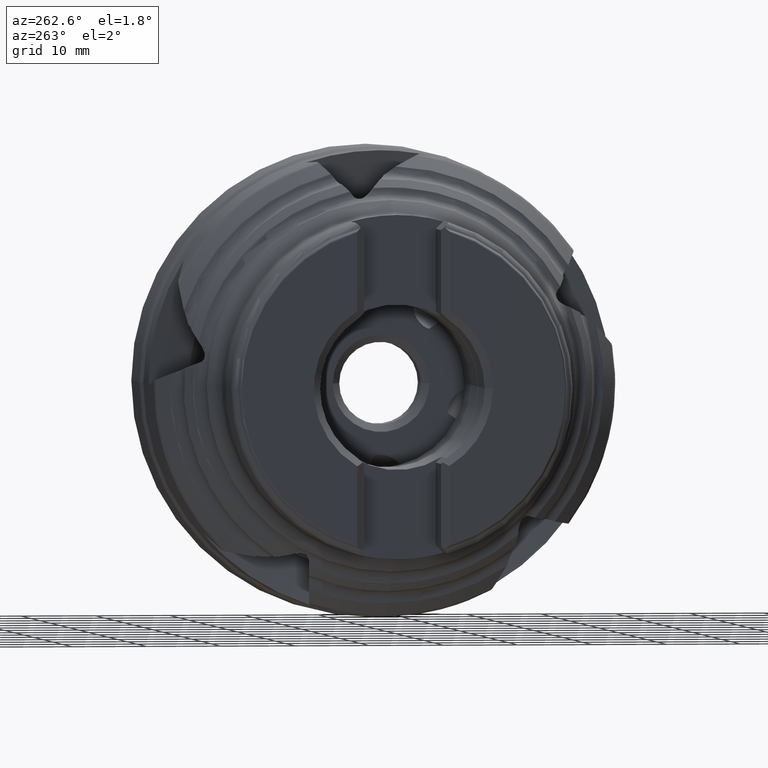
[diagram: clean part render]
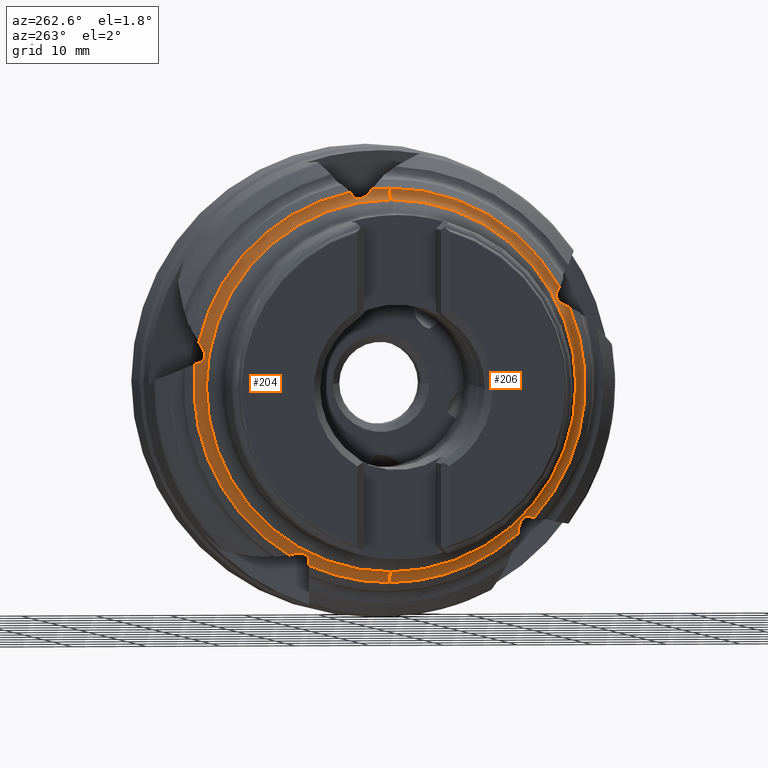
[diagram: same view with one multi-face feature highlighted, each face labeled with its STEP entity id]
A machine part, auxiliary view. The highlighted faces form ONE feature: a constant-radius fillet chain: 2 tangent blend faces with common blend radius 1.5 mm. The faces share edges in the B-rep.
Their STEP definitions:
[1] entity #204 (Torus):
#81 = CARTESIAN_POINT ( 'NONE',  ( -24.36246391146191200, 3.404540822889372500, 25.18942615892297400 ) ) ;
#97 = CARTESIAN_POINT ( 'NONE',  ( -24.20151143756573100, 25.46713319387383500, 3.193515619784487800 ) ) ;
#98 = CARTESIAN_POINT ( 'NONE',  ( -24.03428399164215500, 13.52738050983932900, -22.61425321434513300 ) ) ;
#99 = CARTESIAN_POINT ( 'NONE',  ( -24.03428399164215500, 26.18743267313756100, 2.934764367097817800 ) ) ;
#110 = CARTESIAN_POINT ( 'NONE',  ( -25.53427991958032100, 0.0000000000000000000, -24.85486081896872100 ) ) ;
#111 = CARTESIAN_POINT ( 'NONE',  ( -24.03428399164215500, 3.227111560295240500E-015, 26.35136565532267400 ) ) ;
#117 = CARTESIAN_POINT ( 'NONE',  ( -24.03428399164277000, 10.88348851016882600, -23.99883642490888000 ) ) ;
#118 = CARTESIAN_POINT ( 'NONE',  ( -24.03428399164215500, 0.0000000000000000000, -26.35136565532230400 ) ) ;
#119 = CARTESIAN_POINT ( 'NONE',  ( -24.20151143756573500, 4.832563114830891000, 25.20753357370557900 ) ) ;
#120 = CARTESIAN_POINT ( 'NONE',  ( -24.03428399164215500, 2.348443809163356400, 26.24650993133587200 ) ) ;
#121 = CARTESIAN_POINT ( 'NONE',  ( -25.53427991958032100, 3.043842574520300900E-015, 24.85486081896872100 ) ) ;
#122 = CARTESIAN_POINT ( 'NONE',  ( -24.03428399164215500, 5.301234959929995000, 25.81262055274736900 ) ) ;
#123 = CARTESIAN_POINT ( 'NONE',  ( -24.03428399164215500, 25.68762334756857200, 5.877114823955738900 ) ) ;
#124 = CARTESIAN_POINT ( 'NONE',  ( -24.36246391146191200, 25.00862886249538900, 4.546050027058189600 ) ) ;
#204 = ADVANCED_FACE ( 'NONE', ( #4391 ), #4250, .F. ) ;
#214 = EDGE_CURVE ( 'NONE', #10758, #10759, #4242, .T. ) ;
#215 = EDGE_CURVE ( 'NONE', #10753, #10760, #4260, .T. ) ;
#216 = EDGE_CURVE ( 'NONE', #10759, #10760, #4265, .T. ) ;
#217 = EDGE_CURVE ( 'NONE', #10754, #10758, #10549, .T. ) ;
#218 = EDGE_CURVE ( 'NONE', #10756, #10753, #4272, .T. ) ;
#219 = EDGE_CURVE ( 'NONE', #10757, #10754, #10548, .T. ) ;
#220 = EDGE_CURVE ( 'NONE', #10761, #10757, #10547, .T. ) ;
#221 = EDGE_CURVE ( 'NONE', #10762, #10761, #4274, .T. ) ;
#222 = EDGE_CURVE ( 'NONE', #10763, #10762, #10541, .T. ) ;
#223 = EDGE_CURVE ( 'NONE', #7693, #10763, #10542, .T. ) ;
#224 = EDGE_CURVE ( 'NONE', #10439, #7693, #10543, .T. ) ;
#225 = EDGE_CURVE ( 'NONE', #10436, #10439, #4279, .T. ) ;
#226 = EDGE_CURVE ( 'NONE', #270, #10436, #10544, .T. ) ;
#227 = EDGE_CURVE ( 'NONE', #271, #270, #10545, .T. ) ;
#228 = EDGE_CURVE ( 'NONE', #10755, #271, #10546, .T. ) ;
#229 = EDGE_CURVE ( 'NONE', #10756, #10755, #4277, .T. ) ;
#270 = VERTEX_POINT ( 'NONE', #4730 ) ;
#271 = VERTEX_POINT ( 'NONE', #4733 ) ;
#301 = EDGE_LOOP ( 'NONE', ( #507, #509, #510, #511, #512, #513, #514, #515, #516, #517, #518, #519, #520, #521, #522, #523 ) ) ;
#507 = ORIENTED_EDGE ( 'NONE', *, *, #218, .T. ) ;
#509 = ORIENTED_EDGE ( 'NONE', *, *, #215, .T. ) ;
#510 = ORIENTED_EDGE ( 'NONE', *, *, #216, .F. ) ;
#511 = ORIENTED_EDGE ( 'NONE', *, *, #214, .F. ) ;
#512 = ORIENTED_EDGE ( 'NONE', *, *, #217, .F. ) ;
#513 = ORIENTED_EDGE ( 'NONE', *, *, #219, .F. ) ;
#514 = ORIENTED_EDGE ( 'NONE', *, *, #220, .F. ) ;
#515 = ORIENTED_EDGE ( 'NONE', *, *, #221, .F. ) ;
#516 = ORIENTED_EDGE ( 'NONE', *, *, #222, .F. ) ;
#517 = ORIENTED_EDGE ( 'NONE', *, *, #223, .F. ) ;
#518 = ORIENTED_EDGE ( 'NONE', *, *, #224, .F. ) ;
#519 = ORIENTED_EDGE ( 'NONE', *, *, #225, .F. ) ;
#520 = ORIENTED_EDGE ( 'NONE', *, *, #226, .F. ) ;
#521 = ORIENTED_EDGE ( 'NONE', *, *, #227, .F. ) ;
#522 = ORIENTED_EDGE ( 'NONE', *, *, #228, .F. ) ;
#523 = ORIENTED_EDGE ( 'NONE', *, *, #229, .F. ) ;
#4242 = CIRCLE ( 'NONE', #4267, 26.35136565532230400 ) ;
#4250 = TOROIDAL_SURFACE ( 'NONE', #4253, 26.35486081896872100, 1.499999999999998200 ) ;
#4253 = AXIS2_PLACEMENT_3D ( 'NONE', #4396, #4393, #4398 ) ;
#4260 = CIRCLE ( 'NONE', #4273, 24.85486081896872100 ) ;
#4265 = CIRCLE ( 'NONE', #4275, 1.499999999999997800 ) ;
#4267 = AXIS2_PLACEMENT_3D ( 'NONE', #4435, #4436, #4437 ) ;
#4272 = CIRCLE ( 'NONE', #4276, 1.499999999999997800 ) ;
#4273 = AXIS2_PLACEMENT_3D ( 'NONE', #4438, #4439, #4440 ) ;
#4274 = CIRCLE ( 'NONE', #4278, 26.35136565532230400 ) ;
#4275 = AXIS2_PLACEMENT_3D ( 'NONE', #4443, #4444, #4445 ) ;
#4276 = AXIS2_PLACEMENT_3D ( 'NONE', #4455, #4456, #4457 ) ;
#4277 = CIRCLE ( 'NONE', #4282, 26.35136565532230400 ) ;
#4278 = AXIS2_PLACEMENT_3D ( 'NONE', #4474, #4475, #4476 ) ;
#4279 = CIRCLE ( 'NONE', #4280, 26.35136565532230400 ) ;
#4280 = AXIS2_PLACEMENT_3D ( 'NONE', #4499, #4500, #4501 ) ;
#4282 = AXIS2_PLACEMENT_3D ( 'NONE', #4522, #4523, #4524 ) ;
#4391 = FACE_OUTER_BOUND ( 'NONE', #301, .T. ) ;
#4393 = DIRECTION ( 'NONE',  ( 1.000000000000000000, -0.0000000000000000000, -0.0000000000000000000 ) ) ;
#4396 = CARTESIAN_POINT ( 'NONE',  ( -25.53427991958032100, 0.0000000000000000000, 0.0000000000000000000 ) ) ;
#4398 = DIRECTION ( 'NONE',  ( 0.0000000000000000000, 0.0000000000000000000, -1.000000000000000000 ) ) ;
#4434 = CARTESIAN_POINT ( 'NONE',  ( -24.26913403865445300, 3.210361896446969300, 25.33352619547151000 ) ) ;
#4435 = CARTESIAN_POINT ( 'NONE',  ( -24.03428399164215500, 0.0000000000000000000, 0.0000000000000000000 ) ) ;
#4436 = DIRECTION ( 'NONE',  ( 1.000000000000000000, -0.0000000000000000000, -0.0000000000000000000 ) ) ;
#4437 = DIRECTION ( 'NONE',  ( 0.0000000000000000000, 0.0000000000000000000, -1.000000000000000000 ) ) ;
#4438 = CARTESIAN_POINT ( 'NONE',  ( -25.53427991958032100, 0.0000000000000000000, 0.0000000000000000000 ) ) ;
#4439 = DIRECTION ( 'NONE',  ( 1.000000000000000000, -0.0000000000000000000, -0.0000000000000000000 ) ) ;
#4440 = DIRECTION ( 'NONE',  ( 0.0000000000000000000, 0.0000000000000000000, -1.000000000000000000 ) ) ;
#4441 = CARTESIAN_POINT ( 'NONE',  ( -24.18998163035901800, 3.024459614615156300, 25.49123893818470100 ) ) ;
#4442 = CARTESIAN_POINT ( 'NONE',  ( -24.03456386925013900, 5.223671121017986300, 25.70593000658013200 ) ) ;
#4443 = CARTESIAN_POINT ( 'NONE',  ( -25.53427991958032100, 3.227539594392403200E-015, 26.35486081896872100 ) ) ;
#4444 = DIRECTION ( 'NONE',  ( 0.0000000000000000000, 1.000000000000000000, -1.224646799147353200E-016 ) ) ;
#4445 = DIRECTION ( 'NONE',  ( 0.0000000000000000000, 1.224646799147352200E-016, 1.000000000000000000 ) ) ;
#4446 = CARTESIAN_POINT ( 'NONE',  ( -24.36246391146191200, 3.404540822889372500, 25.18942615892297400 ) ) ;
#4447 = CARTESIAN_POINT ( 'NONE',  ( -24.10241852268846700, 2.759388216539702100, 25.75314856153858400 ) ) ;
#4448 = CARTESIAN_POINT ( 'NONE',  ( -24.07849323805233200, 2.673338542908958400, 25.84471015867815100 ) ) ;
#4449 = CARTESIAN_POINT ( 'NONE',  ( -24.04453471512596600, 2.506323066864405200, 26.03802825091544500 ) ) ;
#4450 = CARTESIAN_POINT ( 'NONE',  ( -24.03451419232860400, 2.424889772335191700, 26.14048145194163900 ) ) ;
#4451 = CARTESIAN_POINT ( 'NONE',  ( -24.03428399164215500, 2.348443809163356400, 26.24650993133587200 ) ) ;
#4452 = CARTESIAN_POINT ( 'NONE',  ( -24.03428399164215500, 5.301234959929995000, 25.81262055274736900 ) ) ;
#4453 = CARTESIAN_POINT ( 'NONE',  ( -24.20151143756573500, 4.832563114830891000, 25.20753357370557900 ) ) ;
#4454 = CARTESIAN_POINT ( 'NONE',  ( -24.25782664738879600, 4.753168294182454000, 25.11172107695557900 ) ) ;
#4455 = CARTESIAN_POINT ( 'NONE',  ( -25.53427991958032100, 0.0000000000000000000, -26.35486081896872100 ) ) ;
#4456 = DIRECTION ( 'NONE',  ( -0.0000000000000000000, -1.000000000000000000, -0.0000000000000000000 ) ) ;
#4457 = DIRECTION ( 'NONE',  ( 0.0000000000000000000, 0.0000000000000000000, -1.000000000000000000 ) ) ;
#4458 = CARTESIAN_POINT ( 'NONE',  ( -24.31969538981302700, 4.650700006914908300, 25.04284358940228100 ) ) ;
#4459 = CARTESIAN_POINT ( 'NONE',  ( -24.42385033261781400, 4.414936794624082100, 24.95577754013654800 ) ) ;
#4460 = CARTESIAN_POINT ( 'NONE',  ( -24.46486928465072500, 4.281697115113038500, 24.93815409694873300 ) ) ;
#4461 = CARTESIAN_POINT ( 'NONE',  ( -24.50177338779274500, 4.014561608954356800, 24.94584583712681800 ) ) ;
#4462 = CARTESIAN_POINT ( 'NONE',  ( -24.49801906406272800, 3.877281808022446300, 24.97099053108258100 ) ) ;
#4463 = CARTESIAN_POINT ( 'NONE',  ( -24.45236578184780300, 3.623942607617126800, 25.05500493452791500 ) ) ;
#4464 = CARTESIAN_POINT ( 'NONE',  ( -24.41153359922853000, 3.506633529166164100, 25.11366323770717600 ) ) ;
#4465 = CARTESIAN_POINT ( 'NONE',  ( -24.36246391146191200, 3.404540822889372500, 25.18942615892297400 ) ) ;
#4466 = CARTESIAN_POINT ( 'NONE',  ( -24.26913403865445000, 25.08567155303306300, 4.775254520561985000 ) ) ;
#4467 = CARTESIAN_POINT ( 'NONE',  ( -24.04906286857912100, 5.145420424071356400, 25.60169390684045600 ) ) ;
#4468 = CARTESIAN_POINT ( 'NONE',  ( -24.10549582527095000, 4.987593778047563700, 25.39795741720722700 ) ) ;
#4469 = CARTESIAN_POINT ( 'NONE',  ( -24.14751451123422000, 4.908689551989323400, 25.29940183353988900 ) ) ;
#4470 = CARTESIAN_POINT ( 'NONE',  ( -24.20151143756573500, 4.832563114830891000, 25.20753357370557900 ) ) ;
#4471 = CARTESIAN_POINT ( 'NONE',  ( -24.03484159804239800, 25.93752117561865200, 3.016047934338499400 ) ) ;
#4472 = CARTESIAN_POINT ( 'NONE',  ( -24.18998163035902100, 25.17821832031411600, 5.000794014820130000 ) ) ;
#4473 = CARTESIAN_POINT ( 'NONE',  ( -24.25782664738878600, 25.35147574565151600, 3.239416891553023700 ) ) ;
#4474 = CARTESIAN_POINT ( 'NONE',  ( -24.03428399164215500, 0.0000000000000000000, 0.0000000000000000000 ) ) ;
#4475 = DIRECTION ( 'NONE',  ( 1.000000000000000000, -0.0000000000000000000, -0.0000000000000000000 ) ) ;
#4476 = DIRECTION ( 'NONE',  ( 0.0000000000000000000, 0.0000000000000000000, -1.000000000000000000 ) ) ;
#4477 = CARTESIAN_POINT ( 'NONE',  ( -24.36246391146191200, 25.00862886249538900, 4.546050027058189600 ) ) ;
#4478 = CARTESIAN_POINT ( 'NONE',  ( -24.10241852268846300, 25.34539760755718500, 5.333826419849951400 ) ) ;
#4479 = CARTESIAN_POINT ( 'NONE',  ( -24.07849323805232100, 25.40588704964684700, 5.443958612229784500 ) ) ;
#4480 = CARTESIAN_POINT ( 'NONE',  ( -24.04453471512597000, 25.53813286056549400, 5.662538344865562400 ) ) ;
#4481 = CARTESIAN_POINT ( 'NONE',  ( -24.03451419232860400, 25.61040737309928500, 5.771645790516155100 ) ) ;
#4482 = CARTESIAN_POINT ( 'NONE',  ( -24.03428399164215500, 25.68762334756857200, 5.877114823955738900 ) ) ;
#4483 = CARTESIAN_POINT ( 'NONE',  ( -24.20151143756573100, 25.46713319387383500, 3.193515619784487800 ) ) ;
#4484 = CARTESIAN_POINT ( 'NONE',  ( -24.31969538981302400, 25.25430492013776600, 3.315585709688610100 ) ) ;
#4485 = CARTESIAN_POINT ( 'NONE',  ( -24.42385033261781800, 25.09864534738921900, 3.512904960184278600 ) ) ;
#4486 = CARTESIAN_POINT ( 'NONE',  ( -24.46486928465073200, 25.04071113161190400, 3.634177482167902300 ) ) ;
#4487 = CARTESIAN_POINT ( 'NONE',  ( -24.50177338779274900, 24.96547700002592800, 3.890615324465263900 ) ) ;
#4488 = CARTESIAN_POINT ( 'NONE',  ( -24.49801906406272800, 24.94696923359044000, 4.028946311447947800 ) ) ;
#4489 = CARTESIAN_POINT ( 'NONE',  ( -24.45236578184781400, 24.94858556118316900, 4.295848087263311600 ) ) ;
#4490 = CARTESIAN_POINT ( 'NONE',  ( -24.41153359922852300, 24.96812242382080900, 4.425542063288268000 ) ) ;
#4491 = CARTESIAN_POINT ( 'NONE',  ( -24.36246391146191200, 25.00862886249538900, 4.546050027058189600 ) ) ;
#4492 = CARTESIAN_POINT ( 'NONE',  ( -24.03428399164215500, 26.18743267313756100, 2.934764367097817800 ) ) ;
#4493 = CARTESIAN_POINT ( 'NONE',  ( -24.26913403865446000, 12.29343575394397100, -22.38225659683247300 ) ) ;
#4494 = CARTESIAN_POINT ( 'NONE',  ( -24.09337390064064600, 25.68922082556514000, 3.105375124767667700 ) ) ;
#4495 = CARTESIAN_POINT ( 'NONE',  ( -24.20151143756573100, 25.46713319387383500, 3.193515619784487800 ) ) ;
#4496 = CARTESIAN_POINT ( 'NONE',  ( -24.03484165280234200, 10.88356688433367300, -23.73601265489806900 ) ) ;
#4497 = CARTESIAN_POINT ( 'NONE',  ( -24.18998163035904300, 12.53653508350435600, -22.40057826628865500 ) ) ;
#4498 = CARTESIAN_POINT ( 'NONE',  ( -24.25782664738877900, 10.91490538159897200, -23.10965133424513200 ) ) ;
#4499 = CARTESIAN_POINT ( 'NONE',  ( -24.03428399164215500, 0.0000000000000000000, 0.0000000000000000000 ) ) ;
#4500 = DIRECTION ( 'NONE',  ( 1.000000000000000000, -0.0000000000000000000, -0.0000000000000000000 ) ) ;
#4501 = DIRECTION ( 'NONE',  ( 0.0000000000000000000, 0.0000000000000000000, -1.000000000000000000 ) ) ;
#4502 = CARTESIAN_POINT ( 'NONE',  ( -24.36246391146191200, 12.05164182616458700, -22.37981272764348600 ) ) ;
#4503 = CARTESIAN_POINT ( 'NONE',  ( -24.10241852268849500, 12.90492896331095500, -22.45666254397897200 ) ) ;
#4504 = CARTESIAN_POINT ( 'NONE',  ( -24.07849323805235300, 13.02836316811361600, -22.48015870297225400 ) ) ;
#4505 = CARTESIAN_POINT ( 'NONE',  ( -24.04453471512599100, 13.27711105017564600, -22.53838709118874900 ) ) ;
#4506 = CARTESIAN_POINT ( 'NONE',  ( -24.03451419232861900, 13.40321244997104700, -22.57340818237719300 ) ) ;
#4507 = CARTESIAN_POINT ( 'NONE',  ( -24.03428399164215500, 13.52738050983932900, -22.61425321434513300 ) ) ;
#4508 = CARTESIAN_POINT ( 'NONE',  ( -24.20151143756572100, 10.90699079500400300, -23.23383237707493600 ) ) ;
#4509 = CARTESIAN_POINT ( 'NONE',  ( -24.31969538981302700, 10.95731879598412200, -22.99369892820114800 ) ) ;
#4510 = CARTESIAN_POINT ( 'NONE',  ( -24.42385033261781400, 11.09687910164205800, -22.78468287549443600 ) ) ;
#4511 = CARTESIAN_POINT ( 'NONE',  ( -24.46486928465073200, 11.19431346669115300, -22.69210889181932000 ) ) ;
#4512 = CARTESIAN_POINT ( 'NONE',  ( -24.50177338779275600, 11.41495172241561700, -22.54131332945594200 ) ) ;
#4513 = CARTESIAN_POINT ( 'NONE',  ( -24.49801906406272400, 11.54079309463455200, -22.48096477175909100 ) ) ;
#4514 = CARTESIAN_POINT ( 'NONE',  ( -24.45236578184781000, 11.79513124042913000, -22.40002480609281200 ) ) ;
#4515 = CARTESIAN_POINT ( 'NONE',  ( -24.41153359922852700, 11.92451476402369300, -22.37852782395254500 ) ) ;
#4516 = CARTESIAN_POINT ( 'NONE',  ( -24.36246391146191200, 12.05164182616458700, -22.37981272764348600 ) ) ;
#4517 = CARTESIAN_POINT ( 'NONE',  ( -24.03428399164277000, 10.88348851016882600, -23.99883642490888000 ) ) ;
#4519 = CARTESIAN_POINT ( 'NONE',  ( -24.09326068584141800, 10.89177714399949300, -23.47253682794116600 ) ) ;
#4520 = CARTESIAN_POINT ( 'NONE',  ( -24.20151143756572100, 10.90699079500400300, -23.23383237707493600 ) ) ;
#4522 = CARTESIAN_POINT ( 'NONE',  ( -24.03428399164215500, 0.0000000000000000000, 0.0000000000000000000 ) ) ;
#4523 = DIRECTION ( 'NONE',  ( 1.000000000000000000, -0.0000000000000000000, -0.0000000000000000000 ) ) ;
#4524 = DIRECTION ( 'NONE',  ( 0.0000000000000000000, 0.0000000000000000000, -1.000000000000000000 ) ) ;
#4730 = CARTESIAN_POINT ( 'NONE',  ( -24.36246391146191200, 12.05164182616458700, -22.37981272764348600 ) ) ;
#4733 = CARTESIAN_POINT ( 'NONE',  ( -24.20151143756572100, 10.90699079500400300, -23.23383237707493600 ) ) ;
#7693 = VERTEX_POINT ( 'NONE', #97 ) ;
#10436 = VERTEX_POINT ( 'NONE', #98 ) ;
#10439 = VERTEX_POINT ( 'NONE', #99 ) ;
#10541 = B_SPLINE_CURVE_WITH_KNOTS ( 'NONE', 3,
 ( #4477, #4466, #4472, #4478, #4479, #4480, #4481, #4482 ),
 .UNSPECIFIED., .F., .F.,
 ( 4, 2, 2, 4 ),
 ( 1.734723475976807100E-018, 0.0007654783298573748000, 0.001148217494786058900, 0.001530956659714743100 ),
 .UNSPECIFIED. ) ;
#10542 = B_SPLINE_CURVE_WITH_KNOTS ( 'NONE', 3,
 ( #4483, #4473, #4484, #4485, #4486, #4487, #4488, #4489, #4490, #4491 ),
 .UNSPECIFIED., .F., .F.,
 ( 4, 2, 2, 2, 4 ),
 ( 3.705370968959021200E-018, 0.0004081521234690037400, 0.0008163042469380038000, 0.001224456370407004000, 0.001632608493876003900 ),
 .UNSPECIFIED. ) ;
#10543 = B_SPLINE_CURVE_WITH_KNOTS ( 'NONE', 3,
 ( #4492, #4471, #4494, #4495 ),
 .UNSPECIFIED., .F., .F.,
 ( 4, 4 ),
 ( 0.0001711106367444782800, 0.0009573460914218071700 ),
 .UNSPECIFIED. ) ;
#10544 = B_SPLINE_CURVE_WITH_KNOTS ( 'NONE', 3,
 ( #4502, #4493, #4497, #4503, #4504, #4505, #4506, #4507 ),
 .UNSPECIFIED., .F., .F.,
 ( 4, 2, 2, 4 ),
 ( 1.734723475976807100E-018, 0.0007654783298572487100, 0.001148217494785870900, 0.001530956659714493300 ),
 .UNSPECIFIED. ) ;
#10545 = B_SPLINE_CURVE_WITH_KNOTS ( 'NONE', 3,
 ( #4508, #4498, #4509, #4510, #4511, #4512, #4513, #4514, #4515, #4516 ),
 .UNSPECIFIED., .F., .F.,
 ( 4, 2, 2, 2, 4 ),
 ( 0.0000000000000000000, 0.0004081521234689999500, 0.0008163042469379999000, 0.001224456370406999800, 0.001632608493875999800 ),
 .UNSPECIFIED. ) ;
#10546 = B_SPLINE_CURVE_WITH_KNOTS ( 'NONE', 3,
 ( #4517, #4496, #4519, #4520 ),
 .UNSPECIFIED., .F., .F.,
 ( 4, 4 ),
 ( 0.002556888241247099800, 0.003344447754128656200 ),
 .UNSPECIFIED. ) ;
#10547 = B_SPLINE_CURVE_WITH_KNOTS ( 'NONE', 3,
 ( #4452, #4442, #4467, #4468, #4469, #4470 ),
 .UNSPECIFIED., .F., .F.,
 ( 4, 2, 4 ),
 ( 0.0006660485213140805800, 0.001058877316812027100, 0.001451706112309973500 ),
 .UNSPECIFIED. ) ;
#10548 = B_SPLINE_CURVE_WITH_KNOTS ( 'NONE', 3,
 ( #4453, #4454, #4458, #4459, #4460, #4461, #4462, #4463, #4464, #4465 ),
 .UNSPECIFIED., .F., .F.,
 ( 4, 2, 2, 2, 4 ),
 ( 8.673617379884035500E-019, 0.0004081521234690002700, 0.0008163042469379996800, 0.001224456370406999000, 0.001632608493875998500 ),
 .UNSPECIFIED. ) ;
#10549 = B_SPLINE_CURVE_WITH_KNOTS ( 'NONE', 3,
 ( #4446, #4434, #4441, #4447, #4448, #4449, #4450, #4451 ),
 .UNSPECIFIED., .F., .F.,
 ( 4, 2, 2, 4 ),
 ( 3.878959614448864200E-018, 0.0007654783298573716600, 0.001148217494786052000, 0.001530956659714732300 ),
 .UNSPECIFIED. ) ;
#10753 = VERTEX_POINT ( 'NONE', #110 ) ;
#10754 = VERTEX_POINT ( 'NONE', #81 ) ;
#10755 = VERTEX_POINT ( 'NONE', #117 ) ;
#10756 = VERTEX_POINT ( 'NONE', #118 ) ;
#10757 = VERTEX_POINT ( 'NONE', #119 ) ;
#10758 = VERTEX_POINT ( 'NONE', #120 ) ;
#10759 = VERTEX_POINT ( 'NONE', #111 ) ;
#10760 = VERTEX_POINT ( 'NONE', #121 ) ;
#10761 = VERTEX_POINT ( 'NONE', #122 ) ;
#10762 = VERTEX_POINT ( 'NONE', #123 ) ;
#10763 = VERTEX_POINT ( 'NONE', #124 ) ;
[2] entity #206 (Torus):
#110 = CARTESIAN_POINT ( 'NONE',  ( -25.53427991958032100, 0.0000000000000000000, -24.85486081896872100 ) ) ;
#111 = CARTESIAN_POINT ( 'NONE',  ( -24.03428399164215500, 3.227111560295240500E-015, 26.35136565532267400 ) ) ;
#118 = CARTESIAN_POINT ( 'NONE',  ( -24.03428399164215500, 0.0000000000000000000, -26.35136565532230400 ) ) ;
#121 = CARTESIAN_POINT ( 'NONE',  ( -25.53427991958032100, 3.043842574520300900E-015, 24.85486081896872100 ) ) ;
#206 = ADVANCED_FACE ( 'NONE', ( #4399 ), #4254, .F. ) ;
#216 = EDGE_CURVE ( 'NONE', #10759, #10760, #4265, .T. ) ;
#218 = EDGE_CURVE ( 'NONE', #10756, #10753, #4272, .T. ) ;
#256 = EDGE_CURVE ( 'NONE', #10760, #10753, #4306, .T. ) ;
#257 = EDGE_CURVE ( 'NONE', #485, #10756, #4308, .T. ) ;
#258 = EDGE_CURVE ( 'NONE', #706, #485, #10529, .T. ) ;
#259 = EDGE_CURVE ( 'NONE', #707, #706, #10528, .T. ) ;
#260 = EDGE_CURVE ( 'NONE', #703, #707, #10527, .T. ) ;
#261 = EDGE_CURVE ( 'NONE', #486, #703, #4310, .T. ) ;
#262 = EDGE_CURVE ( 'NONE', #708, #486, #10526, .T. ) ;
#263 = EDGE_CURVE ( 'NONE', #709, #708, #10525, .T. ) ;
#264 = EDGE_CURVE ( 'NONE', #710, #709, #10524, .T. ) ;
#265 = EDGE_CURVE ( 'NONE', #10759, #710, #4307, .T. ) ;
#306 = EDGE_LOOP ( 'NONE', ( #552, #553, #554, #555, #556, #557, #558, #559, #560, #561, #562, #563 ) ) ;
#485 = VERTEX_POINT ( 'NONE', #4773 ) ;
#486 = VERTEX_POINT ( 'NONE', #4774 ) ;
#552 = ORIENTED_EDGE ( 'NONE', *, *, #216, .T. ) ;
#553 = ORIENTED_EDGE ( 'NONE', *, *, #256, .T. ) ;
#554 = ORIENTED_EDGE ( 'NONE', *, *, #218, .F. ) ;
#555 = ORIENTED_EDGE ( 'NONE', *, *, #257, .F. ) ;
#556 = ORIENTED_EDGE ( 'NONE', *, *, #258, .F. ) ;
#557 = ORIENTED_EDGE ( 'NONE', *, *, #259, .F. ) ;
#558 = ORIENTED_EDGE ( 'NONE', *, *, #260, .F. ) ;
#559 = ORIENTED_EDGE ( 'NONE', *, *, #261, .F. ) ;
#560 = ORIENTED_EDGE ( 'NONE', *, *, #262, .F. ) ;
#561 = ORIENTED_EDGE ( 'NONE', *, *, #263, .F. ) ;
#562 = ORIENTED_EDGE ( 'NONE', *, *, #264, .F. ) ;
#563 = ORIENTED_EDGE ( 'NONE', *, *, #265, .F. ) ;
#703 = VERTEX_POINT ( 'NONE', #4799 ) ;
#706 = VERTEX_POINT ( 'NONE', #4802 ) ;
#707 = VERTEX_POINT ( 'NONE', #4803 ) ;
#708 = VERTEX_POINT ( 'NONE', #4804 ) ;
#709 = VERTEX_POINT ( 'NONE', #4805 ) ;
#710 = VERTEX_POINT ( 'NONE', #4806 ) ;
#4254 = TOROIDAL_SURFACE ( 'NONE', #4257, 26.35486081896872100, 1.499999999999998200 ) ;
#4257 = AXIS2_PLACEMENT_3D ( 'NONE', #4404, #4401, #4406 ) ;
#4265 = CIRCLE ( 'NONE', #4275, 1.499999999999997800 ) ;
#4272 = CIRCLE ( 'NONE', #4276, 1.499999999999997800 ) ;
#4275 = AXIS2_PLACEMENT_3D ( 'NONE', #4443, #4444, #4445 ) ;
#4276 = AXIS2_PLACEMENT_3D ( 'NONE', #4455, #4456, #4457 ) ;
#4306 = CIRCLE ( 'NONE', #4309, 24.85486081896872100 ) ;
#4307 = CIRCLE ( 'NONE', #4314, 26.35136565532230400 ) ;
#4308 = CIRCLE ( 'NONE', #4311, 26.35136565532230400 ) ;
#4309 = AXIS2_PLACEMENT_3D ( 'NONE', #4663, #4664, #4665 ) ;
#4310 = CIRCLE ( 'NONE', #4312, 26.35136565532230400 ) ;
#4311 = AXIS2_PLACEMENT_3D ( 'NONE', #4668, #4669, #4670 ) ;
#4312 = AXIS2_PLACEMENT_3D ( 'NONE', #4693, #4694, #4695 ) ;
#4314 = AXIS2_PLACEMENT_3D ( 'NONE', #4716, #4717, #4718 ) ;
#4399 = FACE_OUTER_BOUND ( 'NONE', #306, .T. ) ;
#4401 = DIRECTION ( 'NONE',  ( 1.000000000000000000, -0.0000000000000000000, -0.0000000000000000000 ) ) ;
#4404 = CARTESIAN_POINT ( 'NONE',  ( -25.53427991958032100, 0.0000000000000000000, 0.0000000000000000000 ) ) ;
#4406 = DIRECTION ( 'NONE',  ( 0.0000000000000000000, 0.0000000000000000000, -1.000000000000000000 ) ) ;
#4443 = CARTESIAN_POINT ( 'NONE',  ( -25.53427991958032100, 3.227539594392403200E-015, 26.35486081896872100 ) ) ;
#4444 = DIRECTION ( 'NONE',  ( 0.0000000000000000000, 1.000000000000000000, -1.224646799147353200E-016 ) ) ;
#4445 = DIRECTION ( 'NONE',  ( 0.0000000000000000000, 1.224646799147352200E-016, 1.000000000000000000 ) ) ;
#4455 = CARTESIAN_POINT ( 'NONE',  ( -25.53427991958032100, 0.0000000000000000000, -26.35486081896872100 ) ) ;
#4456 = DIRECTION ( 'NONE',  ( -0.0000000000000000000, -1.000000000000000000, -0.0000000000000000000 ) ) ;
#4457 = DIRECTION ( 'NONE',  ( 0.0000000000000000000, 0.0000000000000000000, -1.000000000000000000 ) ) ;
#4658 = CARTESIAN_POINT ( 'NONE',  ( -24.26913403865443500, -17.48791041858247300, -18.60824984232624100 ) ) ;
#4662 = CARTESIAN_POINT ( 'NONE',  ( -24.25782664738876800, -18.60569323583423100, -17.52196688427611800 ) ) ;
#4663 = CARTESIAN_POINT ( 'NONE',  ( -25.53427991958032100, 0.0000000000000000000, 0.0000000000000000000 ) ) ;
#4664 = DIRECTION ( 'NONE',  ( 1.000000000000000000, -0.0000000000000000000, -0.0000000000000000000 ) ) ;
#4665 = DIRECTION ( 'NONE',  ( 0.0000000000000000000, 0.0000000000000000000, -1.000000000000000000 ) ) ;
#4666 = CARTESIAN_POINT ( 'NONE',  ( -24.18998163035901100, -17.43021353755286300, -18.84511275103894700 ) ) ;
#4667 = CARTESIAN_POINT ( 'NONE',  ( -24.20151143756571700, -18.72624216757913400, -17.55281371773480000 ) ) ;
#4668 = CARTESIAN_POINT ( 'NONE',  ( -24.03428399164215500, 0.0000000000000000000, 0.0000000000000000000 ) ) ;
#4669 = DIRECTION ( 'NONE',  ( 1.000000000000000000, -0.0000000000000000000, -0.0000000000000000000 ) ) ;
#4670 = DIRECTION ( 'NONE',  ( 0.0000000000000000000, 0.0000000000000000000, -1.000000000000000000 ) ) ;
#4671 = CARTESIAN_POINT ( 'NONE',  ( -24.36246391146190100, -17.56030459368582100, -18.37753495459959300 ) ) ;
#4672 = CARTESIAN_POINT ( 'NONE',  ( -24.10241852268845600, -17.36971288582798300, -19.21280714591587800 ) ) ;
#4673 = CARTESIAN_POINT ( 'NONE',  ( -24.07849323805232100, -17.35391579397527200, -19.33746076315864600 ) ) ;
#4674 = CARTESIAN_POINT ( 'NONE',  ( -24.04453471512597000, -17.33242695915001300, -19.59202761882236000 ) ) ;
#4675 = CARTESIAN_POINT ( 'NONE',  ( -24.03451419232860800, -17.32676652058130200, -19.72277928915052700 ) ) ;
#4676 = CARTESIAN_POINT ( 'NONE',  ( -24.03428399164215500, -17.32724241373483000, -19.85349194061787500 ) ) ;
#4677 = CARTESIAN_POINT ( 'NONE',  ( -24.03428399164215500, -19.46106685768434700, -17.76686096814065500 ) ) ;
#4678 = CARTESIAN_POINT ( 'NONE',  ( -24.25782664738879600, -22.41385618559844100, 12.28048025001250400 ) ) ;
#4679 = CARTESIAN_POINT ( 'NONE',  ( -24.03484165280236300, -19.21108237962949500, -17.68571849494192000 ) ) ;
#4680 = CARTESIAN_POINT ( 'NONE',  ( -24.31969538981301000, -18.48230947865151200, -17.52647317439918600 ) ) ;
#4681 = CARTESIAN_POINT ( 'NONE',  ( -24.42385033261781000, -18.24039689352603200, -17.59461340012776300 ) ) ;
#4682 = CARTESIAN_POINT ( 'NONE',  ( -24.46486928465071400, -18.12224492847611000, -17.65867205372618900 ) ) ;
#4683 = CARTESIAN_POINT ( 'NONE',  ( -24.50177338779275600, -17.91064885563392300, -17.82191311313033600 ) ) ;
#4684 = CARTESIAN_POINT ( 'NONE',  ( -24.49801906406272400, -17.81436684397621000, -17.92294664028432300 ) ) ;
#4685 = CARTESIAN_POINT ( 'NONE',  ( -24.45236578184781400, -17.65879355283226100, -18.13982476626968300 ) ) ;
#4686 = CARTESIAN_POINT ( 'NONE',  ( -24.41153359922852300, -17.59836700030423300, -18.25623287667640700 ) ) ;
#4687 = CARTESIAN_POINT ( 'NONE',  ( -24.36246391146190100, -17.56030459368582100, -18.37753495459959300 ) ) ;
#4688 = CARTESIAN_POINT ( 'NONE',  ( -24.09326068584143600, -18.95796486775095600, -17.61210840776091000 ) ) ;
#4689 = CARTESIAN_POINT ( 'NONE',  ( -24.20151143756571700, -18.72624216757913400, -17.55281371773480000 ) ) ;
#4690 = CARTESIAN_POINT ( 'NONE',  ( -24.18998163035901400, -23.30899948088056200, 10.75365806432265400 ) ) ;
#4691 = CARTESIAN_POINT ( 'NONE',  ( -24.26913403865444600, -23.10155878484128800, 10.88172572312508100 ) ) ;
#4692 = CARTESIAN_POINT ( 'NONE',  ( -24.20151143756573500, -22.48044493612931700, 12.38559690131953100 ) ) ;
#4693 = CARTESIAN_POINT ( 'NONE',  ( -24.03428399164215500, 0.0000000000000000000, 0.0000000000000000000 ) ) ;
#4694 = DIRECTION ( 'NONE',  ( 1.000000000000000000, -0.0000000000000000000, -0.0000000000000000000 ) ) ;
#4695 = DIRECTION ( 'NONE',  ( 0.0000000000000000000, 0.0000000000000000000, -1.000000000000000000 ) ) ;
#4696 = CARTESIAN_POINT ( 'NONE',  ( -24.36246391146190900, -22.90450691786323700, 11.02187149626177900 ) ) ;
#4697 = CARTESIAN_POINT ( 'NONE',  ( -24.10241852268847000, -23.64000190157973300, 10.58249470850621600 ) ) ;
#4698 = CARTESIAN_POINT ( 'NONE',  ( -24.07849323805233200, -23.75367296669403000, 10.52895069522286200 ) ) ;
#4699 = CARTESIAN_POINT ( 'NONE',  ( -24.04453471512597300, -23.98914001845544800, 10.42984811423002100 ) ) ;
#4700 = CARTESIAN_POINT ( 'NONE',  ( -24.03451419232860800, -24.11174307482416200, 10.38406022906984700 ) ) ;
#4701 = CARTESIAN_POINT ( 'NONE',  ( -24.03428399164215500, -24.23620525283636700, 10.34412039967135800 ) ) ;
#4702 = CARTESIAN_POINT ( 'NONE',  ( -24.03428399164215500, -22.91108928555167200, 13.01831247320400700 ) ) ;
#4703 = CARTESIAN_POINT ( 'NONE',  ( -24.03484165280236300, -22.75666875561880800, 12.80563750956132400 ) ) ;
#4704 = CARTESIAN_POINT ( 'NONE',  ( -24.31969538981302700, -22.38001424438499900, 12.16174280350928200 ) ) ;
#4705 = CARTESIAN_POINT ( 'NONE',  ( -24.42385033261781800, -22.37006435012904100, 11.91061377530122200 ) ) ;
#4706 = CARTESIAN_POINT ( 'NONE',  ( -24.46486928465073200, -22.39447678493969800, 11.77844936642872200 ) ) ;
#4707 = CARTESIAN_POINT ( 'NONE',  ( -24.50177338779275600, -22.48434147576169900, 11.52676528099404900 ) ) ;
#4708 = CARTESIAN_POINT ( 'NONE',  ( -24.49801906406272400, -22.55067729227094000, 11.40397456951274400 ) ) ;
#4709 = CARTESIAN_POINT ( 'NONE',  ( -24.45236578184780300, -22.70886585639688300, 11.18899655057113700 ) ) ;
#4710 = CARTESIAN_POINT ( 'NONE',  ( -24.41153359922853000, -22.80090371670614500, 11.09555539963336200 ) ) ;
#4711 = CARTESIAN_POINT ( 'NONE',  ( -24.36246391146190900, -22.90450691786323700, 11.02187149626177900 ) ) ;
#4713 = CARTESIAN_POINT ( 'NONE',  ( -24.09326068584144000, -22.60844378979588900, 12.58765521839717700 ) ) ;
#4714 = CARTESIAN_POINT ( 'NONE',  ( -24.20151143756573500, -22.48044493612931700, 12.38559690131953100 ) ) ;
#4716 = CARTESIAN_POINT ( 'NONE',  ( -24.03428399164215500, 0.0000000000000000000, 0.0000000000000000000 ) ) ;
#4717 = DIRECTION ( 'NONE',  ( 1.000000000000000000, -0.0000000000000000000, -0.0000000000000000000 ) ) ;
#4718 = DIRECTION ( 'NONE',  ( 0.0000000000000000000, 0.0000000000000000000, -1.000000000000000000 ) ) ;
#4773 = CARTESIAN_POINT ( 'NONE',  ( -24.03428399164215500, -17.32724241373483000, -19.85349194061787500 ) ) ;
#4774 = CARTESIAN_POINT ( 'NONE',  ( -24.03428399164215500, -24.23620525283636700, 10.34412039967135800 ) ) ;
#4799 = CARTESIAN_POINT ( 'NONE',  ( -24.03428399164215500, -19.46106685768434700, -17.76686096814065500 ) ) ;
#4802 = CARTESIAN_POINT ( 'NONE',  ( -24.36246391146190100, -17.56030459368582100, -18.37753495459959300 ) ) ;
#4803 = CARTESIAN_POINT ( 'NONE',  ( -24.20151143756571700, -18.72624216757913400, -17.55281371773480000 ) ) ;
#4804 = CARTESIAN_POINT ( 'NONE',  ( -24.36246391146190900, -22.90450691786323700, 11.02187149626177900 ) ) ;
#4805 = CARTESIAN_POINT ( 'NONE',  ( -24.20151143756573500, -22.48044493612931700, 12.38559690131953100 ) ) ;
#4806 = CARTESIAN_POINT ( 'NONE',  ( -24.03428399164215500, -22.91108928555167200, 13.01831247320400700 ) ) ;
#10524 = B_SPLINE_CURVE_WITH_KNOTS ( 'NONE', 3,
 ( #4702, #4703, #4713, #4714 ),
 .UNSPECIFIED., .F., .F.,
 ( 4, 4 ),
 ( 0.002556888241246947500, 0.003344447754128351700 ),
 .UNSPECIFIED. ) ;
#10525 = B_SPLINE_CURVE_WITH_KNOTS ( 'NONE', 3,
 ( #4692, #4678, #4704, #4705, #4706, #4707, #4708, #4709, #4710, #4711 ),
 .UNSPECIFIED., .F., .F.,
 ( 4, 2, 2, 2, 4 ),
 ( 1.734723475976807100E-018, 0.0004081521234690022300, 0.0008163042469380027200, 0.001224456370407003300, 0.001632608493876003700 ),
 .UNSPECIFIED. ) ;
#10526 = B_SPLINE_CURVE_WITH_KNOTS ( 'NONE', 3,
 ( #4696, #4691, #4690, #4697, #4698, #4699, #4700, #4701 ),
 .UNSPECIFIED., .F., .F.,
 ( 4, 2, 2, 4 ),
 ( 3.878959614448864200E-018, 0.0007654783298573685200, 0.001148217494786055200, 0.001530956659714742000 ),
 .UNSPECIFIED. ) ;
#10527 = B_SPLINE_CURVE_WITH_KNOTS ( 'NONE', 3,
 ( #4677, #4679, #4688, #4689 ),
 .UNSPECIFIED., .F., .F.,
 ( 4, 4 ),
 ( 0.002556888241246989200, 0.003344447754128397700 ),
 .UNSPECIFIED. ) ;
#10528 = B_SPLINE_CURVE_WITH_KNOTS ( 'NONE', 3,
 ( #4667, #4662, #4680, #4681, #4682, #4683, #4684, #4685, #4686, #4687 ),
 .UNSPECIFIED., .F., .F.,
 ( 4, 2, 2, 2, 4 ),
 ( 0.0000000000000000000, 0.0004081521234690012500, 0.0008163042469380025000, 0.001224456370407003700, 0.001632608493876005000 ),
 .UNSPECIFIED. ) ;
#10529 = B_SPLINE_CURVE_WITH_KNOTS ( 'NONE', 3,
 ( #4671, #4658, #4666, #4672, #4673, #4674, #4675, #4676 ),
 .UNSPECIFIED., .F., .F.,
 ( 4, 2, 2, 4 ),
 ( 3.469446951953614200E-018, 0.0007654783298573711200, 0.001148217494786049100, 0.001530956659714727300 ),
 .UNSPECIFIED. ) ;
#10753 = VERTEX_POINT ( 'NONE', #110 ) ;
#10756 = VERTEX_POINT ( 'NONE', #118 ) ;
#10759 = VERTEX_POINT ( 'NONE', #111 ) ;
#10760 = VERTEX_POINT ( 'NONE', #121 ) ;